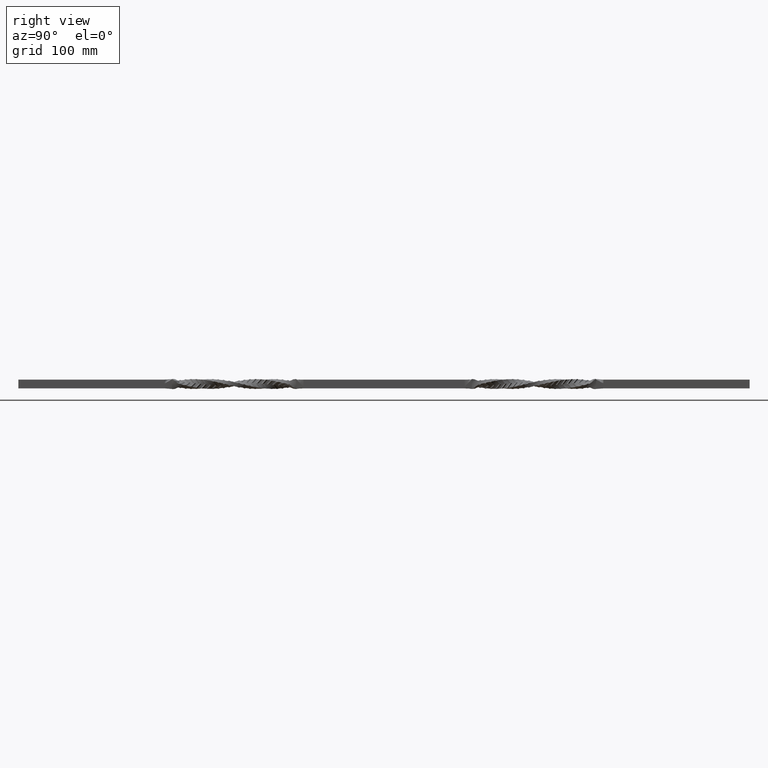
[diagram: clean part render]
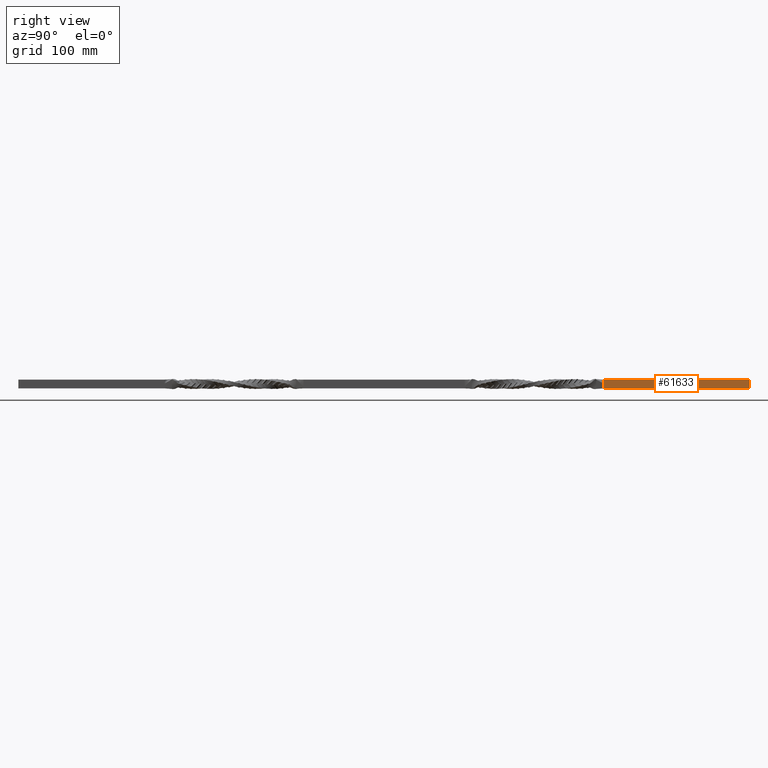
[diagram: same view with one face highlighted and labeled with its STEP entity id]
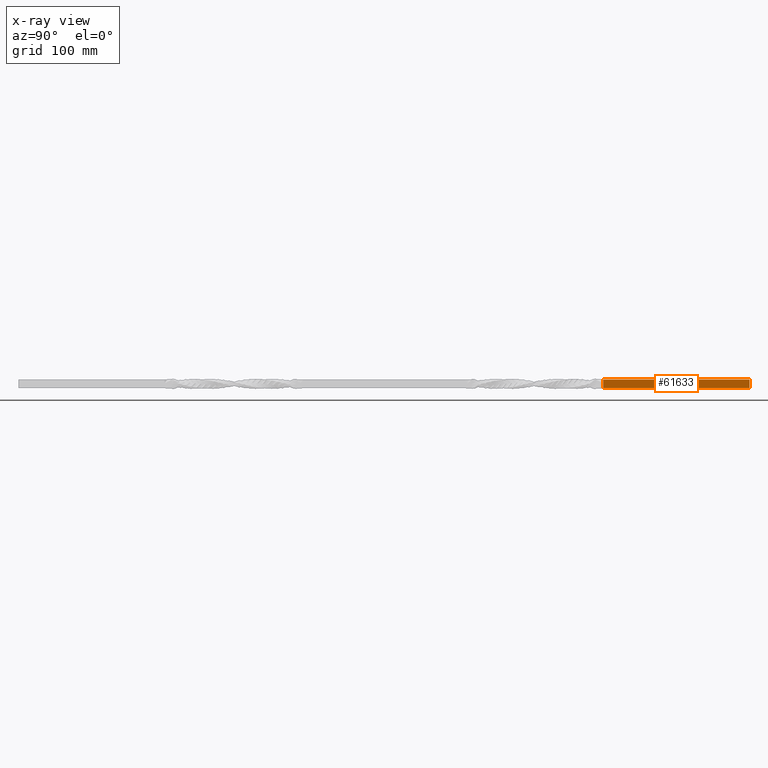
[diagram: x-ray of the same camera — body ghosted, the highlighted face saturated]
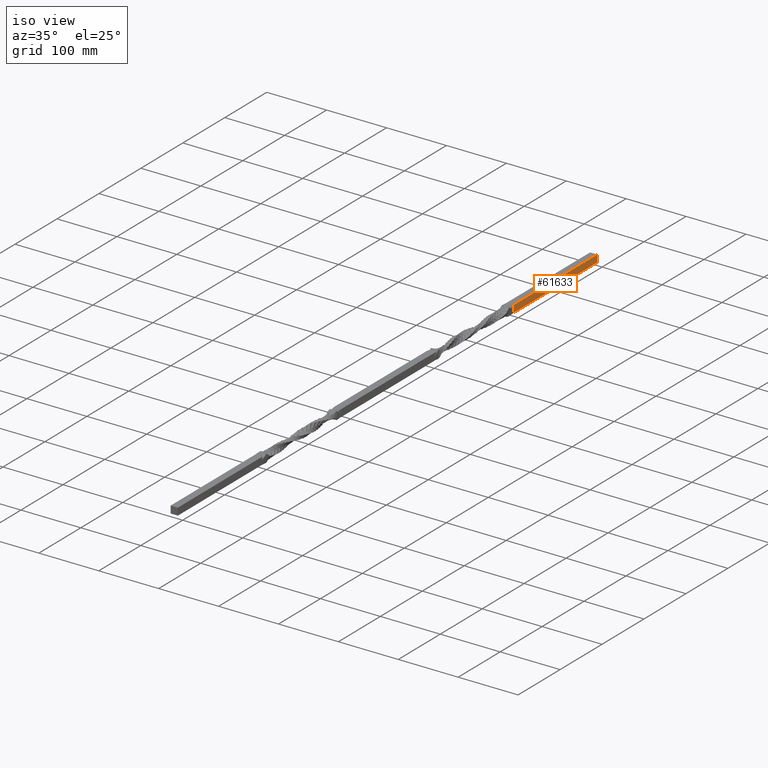
[diagram: same view with one face highlighted and labeled with its STEP entity id]
A machine part, right view. The second image highlights one B-rep face of the part: STEP entity #61633.
The next image is the same camera in x-ray: the body ghosted, the highlighted face saturated — about 0% of this face is hidden behind the body in this view.
A second angle (iso view) of the same face is appended — the face is thin or edge-on in the first view.
In plain terms, the highlighted planar face has unit normal (-1, 0, 0).
Its self-contained STEP definition (entity closure, byte-faithful):
#12046 = VECTOR ( 'NONE', #153682, 1000.000000000000000 ) ;
#14375 = DIRECTION ( 'NONE',  ( 0.000000000000000000, -1.000000000000000000, 0.000000000000000000 ) ) ;
#16334 = ORIENTED_EDGE ( 'NONE', *, *, #81107, .T. ) ;
#17917 = VERTEX_POINT ( 'NONE', #134045 ) ;
#23072 = VECTOR ( 'NONE', #72590, 1000.000000000000000 ) ;
#23842 = LINE ( 'NONE', #76016, #12046 ) ;
#23990 = VECTOR ( 'NONE', #14375, 1000.000000000000000 ) ;
#24216 = CARTESIAN_POINT ( 'NONE',  ( 5.999999999999997335, 780.0000000000000000, 6.000000000000000000 ) ) ;
#25137 = AXIS2_PLACEMENT_3D ( 'NONE', #42772, #129819, #54811 ) ;
#27467 = VECTOR ( 'NONE', #113845, 1000.000000000000000 ) ;
#28939 = LINE ( 'NONE', #29337, #77798 ) ;
#29310 = CARTESIAN_POINT ( 'NONE',  ( 5.999999999999997335, 780.0000000000000000, -6.000000000000000000 ) ) ;
#29337 = CARTESIAN_POINT ( 'NONE',  ( 5.999999999999997335, 580.0000000000001137, 6.000000000000000000 ) ) ;
#29674 = ORIENTED_EDGE ( 'NONE', *, *, #52646, .F. ) ;
#33041 = ORIENTED_EDGE ( 'NONE', *, *, #92793, .F. ) ;
#40703 = VECTOR ( 'NONE', #108763, 1000.000000000000000 ) ;
#42301 = ORIENTED_EDGE ( 'NONE', *, *, #137045, .F. ) ;
#42772 = CARTESIAN_POINT ( 'NONE',  ( 5.999999999999997335, 780.0000000000000000, 6.000000000000000000 ) ) ;
#44819 = DIRECTION ( 'NONE',  ( 0.000000000000000000, -1.000000000000000000, 0.000000000000000000 ) ) ;
#45551 = EDGE_CURVE ( 'NONE', #120409, #17917, #108225, .T. ) ;
#46668 = EDGE_CURVE ( 'NONE', #101581, #124363, #55427, .T. ) ;
#47962 = VERTEX_POINT ( 'NONE', #86723 ) ;
#51316 = ORIENTED_EDGE ( 'NONE', *, *, #46668, .F. ) ;
#51546 = PLANE ( 'NONE',  #25137 ) ;
#52457 = LINE ( 'NONE', #70970, #23072 ) ;
#52646 = EDGE_CURVE ( 'NONE', #138430, #57869, #23842, .T. ) ;
#54771 = CARTESIAN_POINT ( 'NONE',  ( 5.999999999999997335, 580.0000000000001137, 6.000000000000000000 ) ) ;
#54811 = DIRECTION ( 'NONE',  ( 0.000000000000000000, 0.000000000000000000, 1.000000000000000000 ) ) ;
#55427 = LINE ( 'NONE', #95744, #141518 ) ;
#57869 = VERTEX_POINT ( 'NONE', #95903 ) ;
#61633 = ADVANCED_FACE ( 'NONE', ( #160622 ), #51546, .F. ) ;
#61807 = EDGE_CURVE ( 'NONE', #47962, #138430, #139142, .T. ) ;
#67350 = DIRECTION ( 'NONE',  ( 0.000000000000000000, 0.000000000000000000, 1.000000000000000000 ) ) ;
#70148 = EDGE_LOOP ( 'NONE', ( #42301, #51316, #16334, #143517, #33041, #115230, #29674, #106484 ) ) ;
#70970 = CARTESIAN_POINT ( 'NONE',  ( 5.999999999999997335, 580.0000000000001137, 6.000000000000000000 ) ) ;
#72590 = DIRECTION ( 'NONE',  ( 0.000000000000000000, 0.000000000000000000, 1.000000000000000000 ) ) ;
#76016 = CARTESIAN_POINT ( 'NONE',  ( 5.999999999999997335, 580.0000000000001137, 6.000000000000000000 ) ) ;
#77798 = VECTOR ( 'NONE', #107052, 1000.000000000000000 ) ;
#81107 = EDGE_CURVE ( 'NONE', #101581, #120409, #160145, .T. ) ;
#81264 = EDGE_CURVE ( 'NONE', #57869, #91608, #52457, .T. ) ;
#86723 = CARTESIAN_POINT ( 'NONE',  ( 5.999999999999997335, 580.0000000000001137, 0.5606570412918284729 ) ) ;
#87808 = CARTESIAN_POINT ( 'NONE',  ( 5.999999999999997335, 580.0000000000001137, -6.000000000000000000 ) ) ;
#91608 = VERTEX_POINT ( 'NONE', #123548 ) ;
#92793 = EDGE_CURVE ( 'NONE', #91608, #17917, #28939, .T. ) ;
#95744 = CARTESIAN_POINT ( 'NONE',  ( 5.999999999999997335, 780.0000000000000000, -6.000000000000000000 ) ) ;
#95863 = VECTOR ( 'NONE', #67350, 1000.000000000000000 ) ;
#95903 = CARTESIAN_POINT ( 'NONE',  ( 5.999999999999997335, 580.0000000000001137, 1.389684316612942894 ) ) ;
#97282 = CARTESIAN_POINT ( 'NONE',  ( 5.999999999999997335, 780.0000000000000000, 6.000000000000000000 ) ) ;
#101581 = VERTEX_POINT ( 'NONE', #29310 ) ;
#106484 = ORIENTED_EDGE ( 'NONE', *, *, #61807, .F. ) ;
#107052 = DIRECTION ( 'NONE',  ( 0.000000000000000000, 0.000000000000000000, 1.000000000000000000 ) ) ;
#108225 = LINE ( 'NONE', #153918, #23990 ) ;
#108407 = CARTESIAN_POINT ( 'NONE',  ( 5.999999999999997335, 580.0000000000001137, 6.000000000000000000 ) ) ;
#108763 = DIRECTION ( 'NONE',  ( 0.000000000000000000, 0.000000000000000000, 1.000000000000000000 ) ) ;
#113845 = DIRECTION ( 'NONE',  ( 0.000000000000000000, 0.000000000000000000, 1.000000000000000000 ) ) ;
#115230 = ORIENTED_EDGE ( 'NONE', *, *, #81264, .F. ) ;
#115795 = CARTESIAN_POINT ( 'NONE',  ( 5.999999999999997335, 580.0000000000001137, 0.6392417406548590586 ) ) ;
#120409 = VERTEX_POINT ( 'NONE', #24216 ) ;
#123548 = CARTESIAN_POINT ( 'NONE',  ( 5.999999999999997335, 580.0000000000001137, 5.904552654541864065 ) ) ;
#124363 = VERTEX_POINT ( 'NONE', #87808 ) ;
#129819 = DIRECTION ( 'NONE',  ( -1.000000000000000000, 0.000000000000000000, 0.000000000000000000 ) ) ;
#134045 = CARTESIAN_POINT ( 'NONE',  ( 5.999999999999997335, 580.0000000000001137, 6.000000000000000000 ) ) ;
#137045 = EDGE_CURVE ( 'NONE', #124363, #47962, #152483, .T. ) ;
#138430 = VERTEX_POINT ( 'NONE', #115795 ) ;
#139142 = LINE ( 'NONE', #108407, #27467 ) ;
#141518 = VECTOR ( 'NONE', #44819, 1000.000000000000000 ) ;
#143517 = ORIENTED_EDGE ( 'NONE', *, *, #45551, .T. ) ;
#152483 = LINE ( 'NONE', #54771, #95863 ) ;
#153682 = DIRECTION ( 'NONE',  ( 0.000000000000000000, 0.000000000000000000, 1.000000000000000000 ) ) ;
#153918 = CARTESIAN_POINT ( 'NONE',  ( 5.999999999999997335, 780.0000000000000000, 6.000000000000000000 ) ) ;
#160145 = LINE ( 'NONE', #97282, #40703 ) ;
#160622 = FACE_OUTER_BOUND ( 'NONE', #70148, .T. ) ;